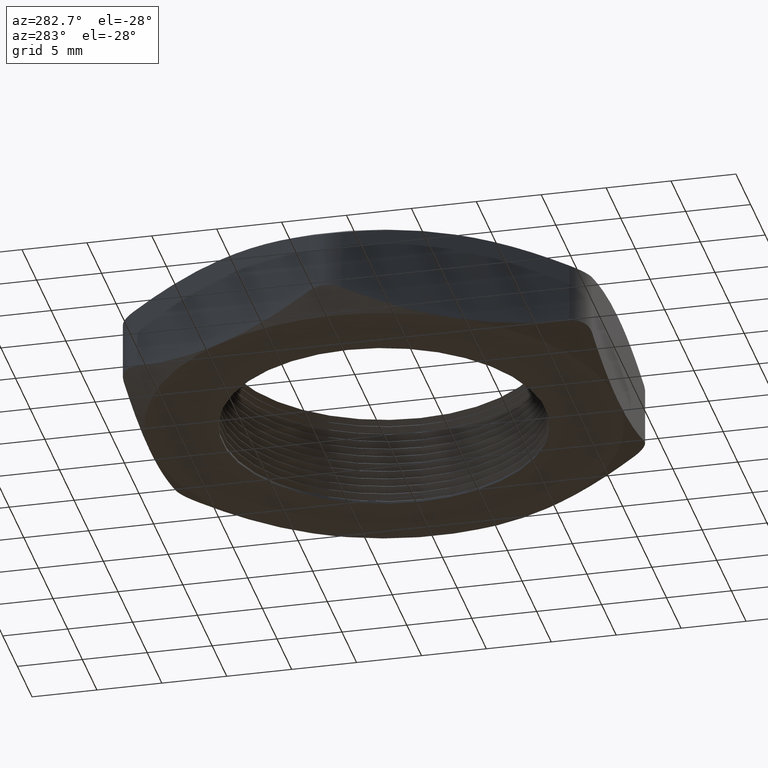
[diagram: clean part render]
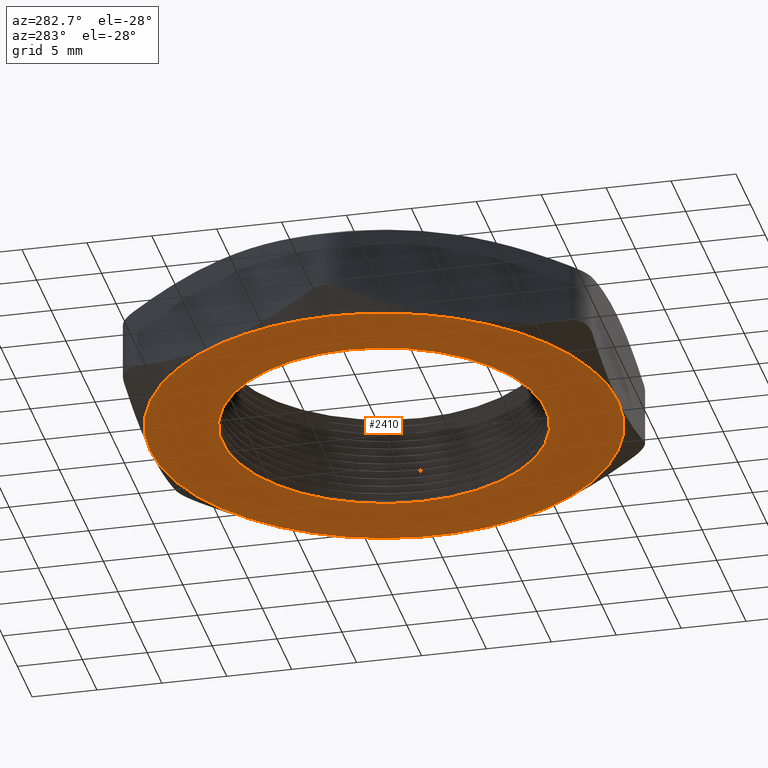
[diagram: same view with one face highlighted and labeled with its STEP entity id]
A machine part, auxiliary view. The second image highlights one B-rep face of the part: STEP entity #2410.
In plain terms, the highlighted planar face has unit normal (0, 0, -1).
Its self-contained STEP definition (entity closure, byte-faithful):
#53 = EDGE_CURVE ( 'NONE', #2737, #2536, #605, .T. ) ;
#54 = ORIENTED_EDGE ( 'NONE', *, *, #53, .T. ) ;
#268 = EDGE_CURVE ( 'NONE', #269, #270, #1021, .T. ) ;
#269 = VERTEX_POINT ( 'NONE', #1072 ) ;
#270 = VERTEX_POINT ( 'NONE', #1071 ) ;
#347 = VERTEX_POINT ( 'NONE', #1215 ) ;
#602 = DIRECTION ( 'NONE',  ( -1.000000000000000000, 0.0000000000000000000, 0.0000000000000000000 ) ) ;
#603 = DIRECTION ( 'NONE',  ( 0.0000000000000000000, 0.0000000000000000000, -1.000000000000000000 ) ) ;
#604 = AXIS2_PLACEMENT_3D ( 'NONE', #616, #603, #602 ) ;
#605 = CIRCLE ( 'NONE', #604, 0.7099999999999999600 ) ;
#616 = CARTESIAN_POINT ( 'NONE',  ( 0.0000000000000000000, 0.0000000000000000000, 0.0000000000000000000 ) ) ;
#1018 = DIRECTION ( 'NONE',  ( -1.000000000000000000, 0.0000000000000000000, 0.0000000000000000000 ) ) ;
#1019 = DIRECTION ( 'NONE',  ( 0.0000000000000000000, 0.0000000000000000000, -1.000000000000000000 ) ) ;
#1020 = AXIS2_PLACEMENT_3D ( 'NONE', #1027, #1019, #1018 ) ;
#1021 = CIRCLE ( 'NONE', #1020, 0.7099999999999999600 ) ;
#1027 = CARTESIAN_POINT ( 'NONE',  ( 0.0000000000000000000, 0.0000000000000000000, 0.0000000000000000000 ) ) ;
#1071 = CARTESIAN_POINT ( 'NONE',  ( -0.6148780366869514000, 0.3549999999999999800, 0.0000000000000000000 ) ) ;
#1072 = CARTESIAN_POINT ( 'NONE',  ( -0.7099999999999999600, 0.0000000000000000000, 0.0000000000000000000 ) ) ;
#1215 = CARTESIAN_POINT ( 'NONE',  ( 0.4899999999999999900, 6.000769315822029800E-017, 0.0000000000000000000 ) ) ;
#1563 = CARTESIAN_POINT ( 'NONE',  ( 0.0000000000000000000, 0.0000000000000000000, 0.0000000000000000000 ) ) ;
#1564 = AXIS2_PLACEMENT_3D ( 'NONE', #1563, #1623, #1622 ) ;
#1565 = CIRCLE ( 'NONE', #1564, 0.7099999999999999600 ) ;
#1566 = CARTESIAN_POINT ( 'NONE',  ( 0.0000000000000000000, 0.0000000000000000000, 0.0000000000000000000 ) ) ;
#1567 = DIRECTION ( 'NONE',  ( -1.000000000000000000, 0.0000000000000000000, 0.0000000000000000000 ) ) ;
#1568 = DIRECTION ( 'NONE',  ( 0.0000000000000000000, 0.0000000000000000000, -1.000000000000000000 ) ) ;
#1569 = CARTESIAN_POINT ( 'NONE',  ( 0.0000000000000000000, 0.0000000000000000000, 0.0000000000000000000 ) ) ;
#1570 = AXIS2_PLACEMENT_3D ( 'NONE', #1569, #1568, #1567 ) ;
#1579 = CIRCLE ( 'NONE', #1570, 0.7099999999999999600 ) ;
#1581 = DIRECTION ( 'NONE',  ( -1.000000000000000000, 0.0000000000000000000, 0.0000000000000000000 ) ) ;
#1582 = DIRECTION ( 'NONE',  ( 0.0000000000000000000, 0.0000000000000000000, -1.000000000000000000 ) ) ;
#1583 = CARTESIAN_POINT ( 'NONE',  ( -0.4099186911246342500, 0.7100000000000000800, 0.0000000000000000000 ) ) ;
#1584 = AXIS2_PLACEMENT_3D ( 'NONE', #1583, #1582, #1581 ) ;
#1585 = PLANE ( 'NONE',  #1584 ) ;
#1586 = FACE_OUTER_BOUND ( 'NONE', #2406, .T. ) ;
#1587 = FACE_BOUND ( 'NONE', #2401, .T. ) ;
#1618 = DIRECTION ( 'NONE',  ( -1.000000000000000000, 0.0000000000000000000, 0.0000000000000000000 ) ) ;
#1619 = DIRECTION ( 'NONE',  ( 0.0000000000000000000, 0.0000000000000000000, -1.000000000000000000 ) ) ;
#1620 = AXIS2_PLACEMENT_3D ( 'NONE', #1566, #1619, #1618 ) ;
#1621 = CIRCLE ( 'NONE', #1620, 0.7099999999999999600 ) ;
#1622 = DIRECTION ( 'NONE',  ( -1.000000000000000000, 0.0000000000000000000, 0.0000000000000000000 ) ) ;
#1623 = DIRECTION ( 'NONE',  ( 0.0000000000000000000, 0.0000000000000000000, -1.000000000000000000 ) ) ;
#1640 = DIRECTION ( 'NONE',  ( 1.000000000000000000, 0.0000000000000000000, 0.0000000000000000000 ) ) ;
#1641 = DIRECTION ( 'NONE',  ( 0.0000000000000000000, 0.0000000000000000000, 1.000000000000000000 ) ) ;
#1642 = CARTESIAN_POINT ( 'NONE',  ( 0.0000000000000000000, 0.0000000000000000000, 0.0000000000000000000 ) ) ;
#1643 = AXIS2_PLACEMENT_3D ( 'NONE', #1642, #1641, #1640 ) ;
#1644 = CIRCLE ( 'NONE', #1643, 0.4899999999999999900 ) ;
#1649 = CARTESIAN_POINT ( 'NONE',  ( -0.4899999999999999900, 0.0000000000000000000, 0.0000000000000000000 ) ) ;
#1671 = DIRECTION ( 'NONE',  ( 1.000000000000000000, 0.0000000000000000000, 0.0000000000000000000 ) ) ;
#1672 = DIRECTION ( 'NONE',  ( 0.0000000000000000000, 0.0000000000000000000, 1.000000000000000000 ) ) ;
#1673 = AXIS2_PLACEMENT_3D ( 'NONE', #1680, #1672, #1671 ) ;
#1674 = CIRCLE ( 'NONE', #1673, 0.4899999999999999900 ) ;
#1680 = CARTESIAN_POINT ( 'NONE',  ( 0.0000000000000000000, 0.0000000000000000000, 0.0000000000000000000 ) ) ;
#1784 = CARTESIAN_POINT ( 'NONE',  ( 1.182924880895400800E-016, 0.7100000000000000800, 0.0000000000000000000 ) ) ;
#1841 = CARTESIAN_POINT ( 'NONE',  ( -0.6148780366869516200, -0.3549999999999997600, 0.0000000000000000000 ) ) ;
#1856 = CARTESIAN_POINT ( 'NONE',  ( 0.6148780366869515100, 0.3549999999999998200, 0.0000000000000000000 ) ) ;
#2186 = CARTESIAN_POINT ( 'NONE',  ( 0.6148780366869514000, -0.3550000000000000400, 0.0000000000000000000 ) ) ;
#2247 = CARTESIAN_POINT ( 'NONE',  ( 1.182924880895400800E-016, -0.7099999999999999600, 0.0000000000000000000 ) ) ;
#2263 = DIRECTION ( 'NONE',  ( -1.000000000000000000, 0.0000000000000000000, 0.0000000000000000000 ) ) ;
#2264 = DIRECTION ( 'NONE',  ( 0.0000000000000000000, 0.0000000000000000000, -1.000000000000000000 ) ) ;
#2265 = AXIS2_PLACEMENT_3D ( 'NONE', #2276, #2264, #2263 ) ;
#2266 = CIRCLE ( 'NONE', #2265, 0.7099999999999999600 ) ;
#2276 = CARTESIAN_POINT ( 'NONE',  ( 0.0000000000000000000, 0.0000000000000000000, 0.0000000000000000000 ) ) ;
#2305 = DIRECTION ( 'NONE',  ( -1.000000000000000000, 0.0000000000000000000, 0.0000000000000000000 ) ) ;
#2306 = DIRECTION ( 'NONE',  ( 0.0000000000000000000, 0.0000000000000000000, -1.000000000000000000 ) ) ;
#2307 = CARTESIAN_POINT ( 'NONE',  ( 0.0000000000000000000, 0.0000000000000000000, 0.0000000000000000000 ) ) ;
#2308 = AXIS2_PLACEMENT_3D ( 'NONE', #2307, #2306, #2305 ) ;
#2309 = CIRCLE ( 'NONE', #2308, 0.7099999999999999600 ) ;
#2401 = EDGE_LOOP ( 'NONE', ( #2747, #2748 ) ) ;
#2406 = EDGE_LOOP ( 'NONE', ( #2407, #2755, #2753, #2420, #2413, #2417, #54 ) ) ;
#2407 = ORIENTED_EDGE ( 'NONE', *, *, #2754, .T. ) ;
#2410 = ADVANCED_FACE ( 'NONE', ( #1587, #1586 ), #1585, .T. ) ;
#2413 = ORIENTED_EDGE ( 'NONE', *, *, #2416, .T. ) ;
#2415 = EDGE_CURVE ( 'NONE', #2719, #2737, #1579, .T. ) ;
#2416 = EDGE_CURVE ( 'NONE', #2532, #2719, #1565, .T. ) ;
#2417 = ORIENTED_EDGE ( 'NONE', *, *, #2415, .T. ) ;
#2418 = EDGE_CURVE ( 'NONE', #2511, #2532, #1621, .T. ) ;
#2420 = ORIENTED_EDGE ( 'NONE', *, *, #2418, .T. ) ;
#2430 = VERTEX_POINT ( 'NONE', #1649 ) ;
#2433 = EDGE_CURVE ( 'NONE', #2430, #347, #1644, .T. ) ;
#2449 = EDGE_CURVE ( 'NONE', #347, #2430, #1674, .T. ) ;
#2511 = VERTEX_POINT ( 'NONE', #1784 ) ;
#2532 = VERTEX_POINT ( 'NONE', #1856 ) ;
#2536 = VERTEX_POINT ( 'NONE', #1841 ) ;
#2719 = VERTEX_POINT ( 'NONE', #2186 ) ;
#2737 = VERTEX_POINT ( 'NONE', #2247 ) ;
#2747 = ORIENTED_EDGE ( 'NONE', *, *, #2433, .T. ) ;
#2748 = ORIENTED_EDGE ( 'NONE', *, *, #2449, .T. ) ;
#2752 = EDGE_CURVE ( 'NONE', #270, #2511, #2266, .T. ) ;
#2753 = ORIENTED_EDGE ( 'NONE', *, *, #2752, .T. ) ;
#2754 = EDGE_CURVE ( 'NONE', #2536, #269, #2309, .T. ) ;
#2755 = ORIENTED_EDGE ( 'NONE', *, *, #268, .T. ) ;